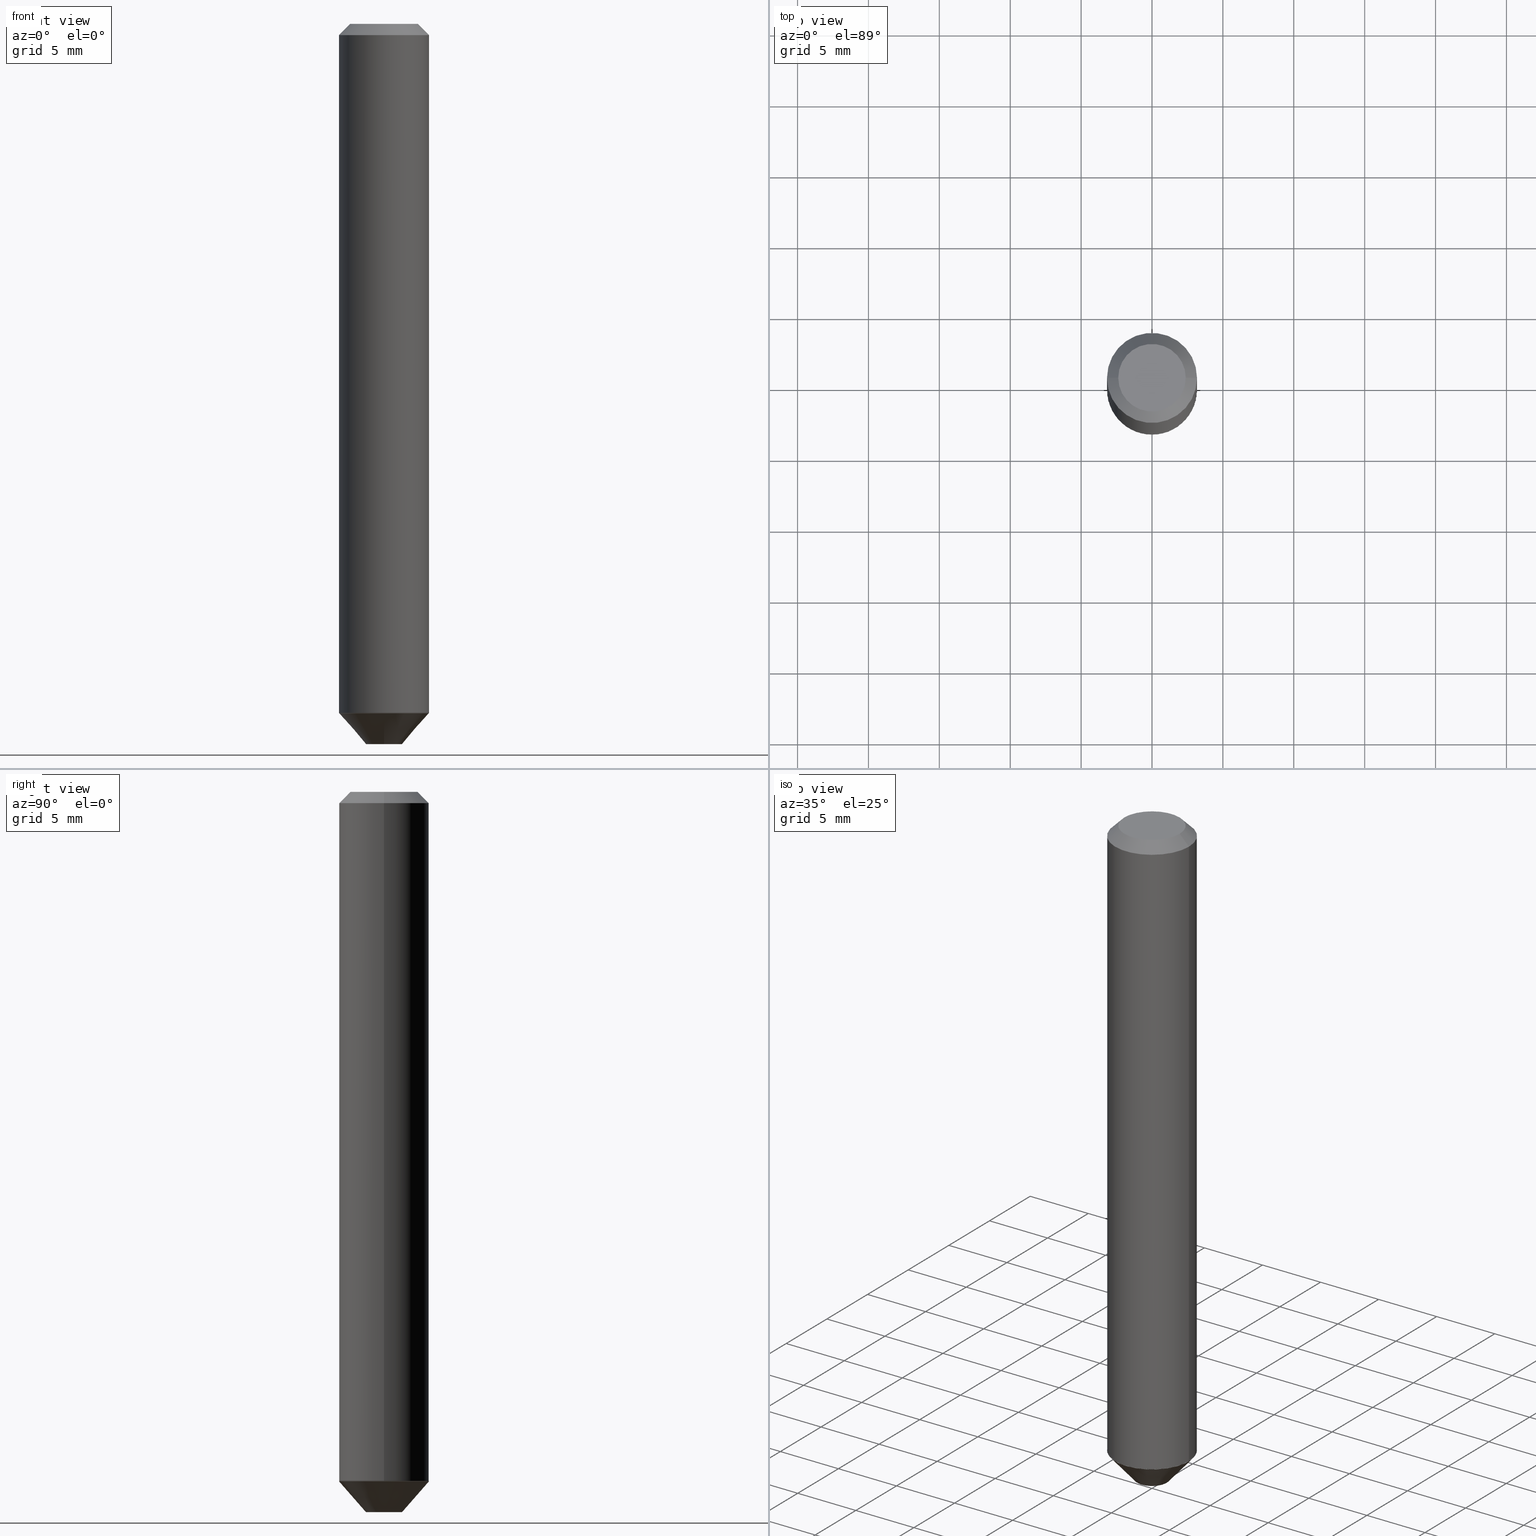
[diagram: canonical four-view strip — front | top / right | iso, engineering-drawing reading convention]
A machine part, canonical four-view strip (front | top / right | iso — engineering-drawing reading convention). The complete STEP part file that produces these views, byte-faithful:
ISO-10303-21;
HEADER;
FILE_DESCRIPTION (( 'STEP AP203' ),
    '1' );
FILE_NAME ('74131.STEP',
    '2025-06-20T12:14:31',
    ( '' ),
    ( '' ),
    'SwSTEP 2.0',
    'SolidWorks 2024',
    '' );
FILE_SCHEMA (( 'CONFIG_CONTROL_DESIGN' ));
ENDSEC;

DATA;
#1 = VECTOR ( 'NONE', #38, 39.37007874015748143 ) ;
#2 = FACE_OUTER_BOUND ( 'NONE', #269, .T. ) ;
#3 = CARTESIAN_POINT ( 'NONE',  ( -8.575622497213927331E-16, -0.1250000000000064115, -1.914303206326506412 ) ) ;
#4 = DATE_AND_TIME ( #331, #133 ) ;
#5 = PERSON_AND_ORGANIZATION ( #190, #335 ) ;
#6 = CONICAL_SURFACE ( 'NONE', #114, 0.1250000000000002498, 0.7853981633981995669 ) ;
#7 = CARTESIAN_POINT ( 'NONE',  ( 4.680146042248569603E-29, -6.682008181107177539E-15, -1.913803206326506912 ) ) ;
#8 = PERSON_AND_ORGANIZATION ( #190, #335 ) ;
#9 =( GEOMETRIC_REPRESENTATION_CONTEXT ( 3 ) GLOBAL_UNCERTAINTY_ASSIGNED_CONTEXT ( ( #303 ) ) GLOBAL_UNIT_ASSIGNED_CONTEXT ( ( #324, #101, #200 ) ) REPRESENTATION_CONTEXT ( 'NONE', 'WORKASPACE' ) );
#10 = ORIENTED_EDGE ( 'NONE', *, *, #160, .F. ) ;
#11 = EDGE_CURVE ( 'NONE', #375, #396, #174, .T. ) ;
#12 = CIRCLE ( 'NONE', #123, 0.1249999999999996253 ) ;
#13 = FACE_OUTER_BOUND ( 'NONE', #309, .T. ) ;
#14 = AXIS2_PLACEMENT_3D ( 'NONE', #85, #178, #397 ) ;
#15 = DATE_TIME_ROLE ( 'creation_date' ) ;
#16 = ORIENTED_EDGE ( 'NONE', *, *, #41, .T. ) ;
#17 = AXIS2_PLACEMENT_3D ( 'NONE', #168, #171, #226 ) ;
#18 = PRODUCT ( '74131', '74131', '', ( #297 ) ) ;
#19 = CARTESIAN_POINT ( 'NONE',  ( 8.693788533719868745E-16, 0.1244999999999933243, -1.913803206326507578 ) ) ;
#20 = CC_DESIGN_DATE_AND_TIME_ASSIGNMENT ( #189, #15, ( #320 ) ) ;
#21 = ORIENTED_EDGE ( 'NONE', *, *, #96, .F. ) ;
#22 = DIRECTION ( 'NONE',  ( -6.982962677686265922E-15, -1.000000000000000000, 4.370956789862834560E-15 ) ) ;
#23 = DIRECTION ( 'NONE',  ( 2.445468806185136597E-29, -3.491481338843145583E-15, -1.000000000000000000 ) ) ;
#24 = CONICAL_SURFACE ( 'NONE', #307, 0.1250000000000002498, 0.7853981633981995669 ) ;
#25 = CIRCLE ( 'NONE', #281, 0.1244999999999995832 ) ;
#26 = LINE ( 'NONE', #118, #170 ) ;
#27 = DIMENSIONAL_EXPONENTS ( 1.000000000000000000, 0.000000000000000000, 0.000000000000000000, 0.000000000000000000, 0.000000000000000000, 0.000000000000000000, 0.000000000000000000 ) ;
#28 = APPROVAL_STATUS ( 'not_yet_approved' ) ;
#29 = ORIENTED_EDGE ( 'NONE', *, *, #132, .F. ) ;
#30 = CARTESIAN_POINT ( 'NONE',  ( -9.358861080966640236E-47, 1.336197326842803670E-32, 3.827021247335477232E-18 ) ) ;
#31 = AXIS2_PLACEMENT_3D ( 'NONE', #261, #145, #76 ) ;
#32 = EDGE_LOOP ( 'NONE', ( #262, #222, #228, #276 ) ) ;
#33 = EDGE_CURVE ( 'NONE', #134, #149, #229, .T. ) ;
#34 = CARTESIAN_POINT ( 'NONE',  ( 4.680146042248569603E-29, -6.682008181107177539E-15, -1.913803206326506912 ) ) ;
#35 = VERTEX_POINT ( 'NONE', #3 ) ;
#36 = DESIGN_CONTEXT ( 'detailed design', #108, 'design' ) ;
#37 = CARTESIAN_POINT ( 'NONE',  ( 0.1250000000000000278, -9.819791265496326367E-16, -0.03125000000000022898 ) ) ;
#38 = DIRECTION ( 'NONE',  ( 0.7071067811870787034, -2.468850131087820502E-15, 0.7071067811860163310 ) ) ;
#39 = EDGE_LOOP ( 'NONE', ( #166, #197, #253, #10 ) ) ;
#40 = FACE_OUTER_BOUND ( 'NONE', #286, .T. ) ;
#41 = EDGE_CURVE ( 'NONE', #88, #300, #366, .T. ) ;
#42 = CARTESIAN_POINT ( 'NONE',  ( 4.681369141675924040E-29, -6.683753399041078797E-15, -1.914303206326506857 ) ) ;
#43 = PRODUCT_DEFINITION_SHAPE ( 'NONE', 'NONE',  #320 ) ;
#44 = EDGE_CURVE ( 'NONE', #35, #120, #12, .T. ) ;
#45 = CONICAL_SURFACE ( 'NONE', #382, 0.1250000000000000278, 0.7853981633974450594 ) ;
#46 = ADVANCED_FACE ( 'NONE', ( #173 ), #86, .T. ) ;
#47 = CIRCLE ( 'NONE', #196, 0.1250000000000000278 ) ;
#48 = LINE ( 'NONE', #176, #315 ) ;
#49 = DIRECTION ( 'NONE',  ( -2.445468806185136877E-29, 3.491481338843145188E-15, 1.000000000000000000 ) ) ;
#50 = DIRECTION ( 'NONE',  ( 0.7071067811865452413, -7.319954787623248157E-15, -0.7071067811865497932 ) ) ;
#51 = APPROVAL_STATUS ( 'not_yet_approved' ) ;
#52 = DIRECTION ( 'NONE',  ( 6.982962677686265133E-15, 1.000000000000000000, -4.388510833195603583E-15 ) ) ;
#53 = AXIS2_PLACEMENT_3D ( 'NONE', #30, #370, #405 ) ;
#54 = ORIENTED_EDGE ( 'NONE', *, *, #251, .T. ) ;
#55 = CARTESIAN_POINT ( 'NONE',  ( 4.680146042248569603E-29, -6.682008181107177539E-15, -1.913803206326506912 ) ) ;
#56 = PERSON_AND_ORGANIZATION ( #190, #335 ) ;
#57 = EDGE_CURVE ( 'NONE', #149, #134, #83, .T. ) ;
#58 = CALENDAR_DATE ( 2025, 20, 6 ) ;
#59 = CALENDAR_DATE ( 2025, 20, 6 ) ;
#60 = MANIFOLD_SOLID_BREP ( 'Body-Move/Copy2[1]', #323 ) ;
#61 = DIRECTION ( 'NONE',  ( 6.982962677686265922E-15, 1.000000000000000000, -4.370956789862834560E-15 ) ) ;
#62 = DIRECTION ( 'NONE',  ( 1.000000000000000000, -6.982962677686266711E-15, 0.000000000000000000 ) ) ;
#63 = EDGE_LOOP ( 'NONE', ( #146, #306, #177, #162 ) ) ;
#64 = CARTESIAN_POINT ( 'NONE',  ( 8.693788533719868745E-16, 0.1244999999999933243, -1.913803206326507578 ) ) ;
#65 = CARTESIAN_POINT ( 'NONE',  ( 4.678923307845477923E-29, -6.680262440437756036E-15, -1.913303206326507189 ) ) ;
#66 = AXIS2_PLACEMENT_3D ( 'NONE', #55, #91, #367 ) ;
#67 = AXIS2_PLACEMENT_3D ( 'NONE', #351, #349, #61 ) ;
#68 = ORIENTED_EDGE ( 'NONE', *, *, #33, .F. ) ;
#69 = CYLINDRICAL_SURFACE ( 'NONE', #215, 0.1250000000000001388 ) ;
#70 = DIRECTION ( 'NONE',  ( -2.445468806185136597E-29, 3.491481338843145583E-15, 1.000000000000000000 ) ) ;
#71 = ORIENTED_EDGE ( 'NONE', *, *, #259, .F. ) ;
#72 = EDGE_LOOP ( 'NONE', ( #68, #153 ) ) ;
#73 = LOCAL_TIME ( 8, 14, 31.00000000000000000, #345 ) ;
#74 = CARTESIAN_POINT ( 'NONE',  ( -8.728703347107337392E-16, -0.1250000000000063005, -1.914303206326506412 ) ) ;
#75 = COORDINATED_UNIVERSAL_TIME_OFFSET ( 5, 0, .BEHIND. ) ;
#76 = DIRECTION ( 'NONE',  ( 1.000000000000000000, 0.000000000000000000, 0.000000000000000000 ) ) ;
#77 = CALENDAR_DATE ( 2025, 20, 6 ) ;
#78 = APPROVAL ( #28, 'UNSPECIFIED' ) ;
#79 = LOCAL_TIME ( 8, 14, 31.00000000000000000, #231 ) ;
#80 = DIRECTION ( 'NONE',  ( 2.446198854709447971E-29, -3.490435867804550332E-15, -1.000000000000000000 ) ) ;
#81 = APPROVAL_DATE_TIME ( #233, #78 ) ;
#82 = VECTOR ( 'NONE', #194, 39.37007874015748143 ) ;
#83 = CIRCLE ( 'NONE', #235, 0.1244999999999999996 ) ;
#84 = DIRECTION ( 'NONE',  ( 2.446198854709447971E-29, -3.490435867804550332E-15, -1.000000000000000000 ) ) ;
#85 = CARTESIAN_POINT ( 'NONE',  ( 4.678923307845477923E-29, -6.680262440437756036E-15, -1.913303206326507189 ) ) ;
#86 = PLANE ( 'NONE',  #416 ) ;
#87 = APPROVAL_PERSON_ORGANIZATION ( #56, #361, #312 ) ;
#88 = VERTEX_POINT ( 'NONE', #117 ) ;
#89 = DIRECTION ( 'NONE',  ( -1.000000000000000000, 6.982962677686265922E-15, 0.000000000000000000 ) ) ;
#90 = CARTESIAN_POINT ( 'NONE',  ( -0.09374999999999998612, 7.092071469525108711E-16, 3.827021247330707859E-18 ) ) ;
#91 = DIRECTION ( 'NONE',  ( -2.445468806185136597E-29, 3.491481338843145583E-15, 1.000000000000000000 ) ) ;
#92 = APPROVAL_PERSON_ORGANIZATION ( #5, #240, #227 ) ;
#93 = AXIS2_PLACEMENT_3D ( 'NONE', #252, #167, #287 ) ;
#94 = EDGE_LOOP ( 'NONE', ( #241, #199, #373, #29 ) ) ;
#95 = DIRECTION ( 'NONE',  ( 1.000000000000000000, -6.982962677686264344E-15, 0.000000000000000000 ) ) ;
#96 = EDGE_CURVE ( 'NONE', #329, #224, #48, .T. ) ;
#97 = LINE ( 'NONE', #64, #82 ) ;
#98 = CARTESIAN_POINT ( 'NONE',  ( 0.1244999999999995832, -7.551387034479115504E-15, -1.913803206326506912 ) ) ;
#99 = PLANE ( 'NONE',  #93 ) ;
#100 = CONICAL_SURFACE ( 'NONE', #406, 0.1250000000000000278, 0.7853981633974450594 ) ;
#101 =( NAMED_UNIT ( * ) PLANE_ANGLE_UNIT ( ) SI_UNIT ( $, .RADIAN. ) );
#102 = DIRECTION ( 'NONE',  ( -2.445468806185136597E-29, 3.491481338843145583E-15, 1.000000000000000000 ) ) ;
#103 = CARTESIAN_POINT ( 'NONE',  ( -6.110092342974980473E-16, -0.05000000000000672656, -1.999999999999999778 ) ) ;
#104 = ORIENTED_EDGE ( 'NONE', *, *, #57, .T. ) ;
#105 = COORDINATED_UNIVERSAL_TIME_OFFSET ( 5, 0, .BEHIND. ) ;
#106 = ADVANCED_FACE ( 'NONE', ( #298 ), #137, .T. ) ;
#107 = CALENDAR_DATE ( 2025, 20, 6 ) ;
#108 = APPLICATION_CONTEXT ( 'configuration controlled 3d designs of mechanical parts and assemblies' ) ;
#109 = PERSON_AND_ORGANIZATION ( #190, #335 ) ;
#110 = ORIENTED_EDGE ( 'NONE', *, *, #172, .T. ) ;
#111 = VECTOR ( 'NONE', #339, 39.37007874015748143 ) ;
#112 = EDGE_CURVE ( 'NONE', #396, #375, #295, .T. ) ;
#113 = CARTESIAN_POINT ( 'NONE',  ( 7.642090019328607041E-31, -1.091087918388490883E-16, -0.03125000000000022898 ) ) ;
#114 = AXIS2_PLACEMENT_3D ( 'NONE', #65, #192, #95 ) ;
#115 = ORIENTED_EDGE ( 'NONE', *, *, #314, .T. ) ;
#116 = CARTESIAN_POINT ( 'NONE',  ( 0.000000000000000000, 0.000000000000000000, 0.000000000000000000 ) ) ;
#117 = CARTESIAN_POINT ( 'NONE',  ( 0.1250000000000002498, -7.553132775148540952E-15, -1.913303206326507189 ) ) ;
#118 = CARTESIAN_POINT ( 'NONE',  ( -0.1250000000000000278, 7.637615428719344354E-16, -0.03125000000000022898 ) ) ;
#119 = APPLICATION_PROTOCOL_DEFINITION ( 'international standard', 'config_control_design', 1994, #108 ) ;
#120 = VERTEX_POINT ( 'NONE', #236 ) ;
#121 = EDGE_CURVE ( 'NONE', #149, #35, #187, .T. ) ;
#122 = DIRECTION ( 'NONE',  ( -2.446198854709447971E-29, 3.490435867804550332E-15, 1.000000000000000000 ) ) ;
#123 = AXIS2_PLACEMENT_3D ( 'NONE', #42, #343, #365 ) ;
#124 = ADVANCED_FACE ( 'NONE', ( #369 ), #45, .T. ) ;
#125 = DIRECTION ( 'NONE',  ( 1.000000000000000000, -6.982962677686264344E-15, 0.000000000000000000 ) ) ;
#126 = CARTESIAN_POINT ( 'NONE',  ( 8.881784197001692113E-16, 0.1249999999999929501, -1.914303206326507523 ) ) ;
#127 = ORIENTED_EDGE ( 'NONE', *, *, #371, .F. ) ;
#128 = APPLICATION_PROTOCOL_DEFINITION ( 'international standard', 'config_control_design', 1994, #207 ) ;
#129 = ORIENTED_EDGE ( 'NONE', *, *, #391, .F. ) ;
#130 = EDGE_LOOP ( 'NONE', ( #21, #414, #16, #407 ) ) ;
#131 = DIRECTION ( 'NONE',  ( 1.000000000000000000, -6.982962677686266711E-15, 4.875989565238656407E-29 ) ) ;
#132 = EDGE_CURVE ( 'NONE', #179, #224, #26, .T. ) ;
#133 = LOCAL_TIME ( 8, 14, 31.00000000000000000, #105 ) ;
#134 = VERTEX_POINT ( 'NONE', #19 ) ;
#135 = AXIS2_PLACEMENT_3D ( 'NONE', #353, #143, #232 ) ;
#136 = CONICAL_SURFACE ( 'NONE', #151, 0.1244999999999999996, 0.7853981633971751641 ) ;
#137 = CONICAL_SURFACE ( 'NONE', #157, 0.1244999999999999996, 0.7853981633971751641 ) ;
#138 = ORIENTED_EDGE ( 'NONE', *, *, #121, .F. ) ;
#139 = DIRECTION ( 'NONE',  ( -0.7071067811870787034, 7.493145998872274248E-15, 0.7071067811860163310 ) ) ;
#140 = LINE ( 'NONE', #410, #1 ) ;
#141 = CARTESIAN_POINT ( 'NONE',  ( 4.680146042248569603E-29, -6.682008181107177539E-15, -1.913803206326506912 ) ) ;
#142 = EDGE_CURVE ( 'NONE', #193, #300, #268, .T. ) ;
#143 = DIRECTION ( 'NONE',  ( 2.446198854709447971E-29, -3.490435867804550332E-15, -1.000000000000000000 ) ) ;
#144 = SHAPE_DEFINITION_REPRESENTATION ( #43, #275 ) ;
#145 = DIRECTION ( 'NONE',  ( 0.000000000000000000, 0.000000000000000000, 1.000000000000000000 ) ) ;
#146 = ORIENTED_EDGE ( 'NONE', *, *, #11, .F. ) ;
#147 = CC_DESIGN_PERSON_AND_ORGANIZATION_ASSIGNMENT ( #8, #292, ( #313 ) ) ;
#148 = PERSON_AND_ORGANIZATION_ROLE ( 'creator' ) ;
#149 = VERTEX_POINT ( 'NONE', #402 ) ;
#150 = CYLINDRICAL_SURFACE ( 'NONE', #219, 0.1250000000000001388 ) ;
#151 = AXIS2_PLACEMENT_3D ( 'NONE', #34, #225, #279 ) ;
#152 = ORIENTED_EDGE ( 'NONE', *, *, #381, .F. ) ;
#153 = ORIENTED_EDGE ( 'NONE', *, *, #57, .F. ) ;
#154 = FACE_OUTER_BOUND ( 'NONE', #32, .T. ) ;
#155 = LOCAL_TIME ( 8, 14, 31.00000000000000000, #156 ) ;
#156 = COORDINATED_UNIVERSAL_TIME_OFFSET ( 5, 0, .BEHIND. ) ;
#157 = AXIS2_PLACEMENT_3D ( 'NONE', #7, #209, #340 ) ;
#158 = FACE_OUTER_BOUND ( 'NONE', #63, .T. ) ;
#159 = VECTOR ( 'NONE', #237, 39.37007874015748143 ) ;
#160 = EDGE_CURVE ( 'NONE', #329, #88, #213, .T. ) ;
#161 = CARTESIAN_POINT ( 'NONE',  ( 4.678923307845477923E-29, -6.680262440437756036E-15, -1.913303206326507189 ) ) ;
#162 = ORIENTED_EDGE ( 'NONE', *, *, #354, .F. ) ;
#163 = DIRECTION ( 'NONE',  ( 4.679497495853047431E-15, 0.6585807243314101278, 0.7525100860049086515 ) ) ;
#164 = CIRCLE ( 'NONE', #67, 0.1249999999999996253 ) ;
#165 = LINE ( 'NONE', #74, #183 ) ;
#166 = ORIENTED_EDGE ( 'NONE', *, *, #314, .F. ) ;
#167 = DIRECTION ( 'NONE',  ( 2.438088387897960049E-29, -3.491481338843145188E-15, -1.000000000000000000 ) ) ;
#168 = CARTESIAN_POINT ( 'NONE',  ( -4.679430540483320118E-47, 6.680986634214018350E-33, 1.913510623667738616E-18 ) ) ;
#169 = ORIENTED_EDGE ( 'NONE', *, *, #354, .T. ) ;
#170 = VECTOR ( 'NONE', #243, 39.37007874015748143 ) ;
#171 = DIRECTION ( 'NONE',  ( 2.438088387897960049E-29, -3.491481338843145188E-15, -1.000000000000000000 ) ) ;
#172 = EDGE_CURVE ( 'NONE', #88, #329, #264, .T. ) ;
#173 = FACE_OUTER_BOUND ( 'NONE', #72, .T. ) ;
#174 = CIRCLE ( 'NONE', #332, 0.04999999999999973910 ) ;
#175 = ADVANCED_FACE ( 'NONE', ( #13 ), #150, .T. ) ;
#176 = CARTESIAN_POINT ( 'NONE',  ( -0.1250000000000001388, 8.881784197001262184E-16, -6.148668862818638533E-30 ) ) ;
#177 = ORIENTED_EDGE ( 'NONE', *, *, #259, .T. ) ;
#178 = DIRECTION ( 'NONE',  ( -2.445468806185136597E-29, 3.491481338843145583E-15, 1.000000000000000000 ) ) ;
#179 = VERTEX_POINT ( 'NONE', #90 ) ;
#180 = AXIS2_PLACEMENT_3D ( 'NONE', #310, #122, #245 ) ;
#181 = ADVANCED_FACE ( 'NONE', ( #154 ), #100, .T. ) ;
#182 = DIRECTION ( 'NONE',  ( 1.000000000000000000, -6.982962677686264344E-15, 0.000000000000000000 ) ) ;
#183 = VECTOR ( 'NONE', #374, 39.37007874015748854 ) ;
#184 = DIRECTION ( 'NONE',  ( 2.446198854709447971E-29, -3.490435867804550332E-15, -1.000000000000000000 ) ) ;
#185 = EDGE_CURVE ( 'NONE', #378, #247, #203, .T. ) ;
#186 = DIRECTION ( 'NONE',  ( -2.446198854709447971E-29, 3.490435867804550332E-15, 1.000000000000000000 ) ) ;
#187 = LINE ( 'NONE', #304, #111 ) ;
#188 = CARTESIAN_POINT ( 'NONE',  ( 0.1250000000000000278, -9.666710415602907432E-16, -0.03125000000000022898 ) ) ;
#189 = DATE_AND_TIME ( #59, #73 ) ;
#190 = PERSON ( 'UNSPECIFIED', 'UNSPECIFIED', 'UNSPECIFIED', ('UNSPECIFIED'), ('UNSPECIFIED'), ('UNSPECIFIED') ) ;
#191 = FACE_OUTER_BOUND ( 'NONE', #393, .T. ) ;
#192 = DIRECTION ( 'NONE',  ( -2.445468806185136597E-29, 3.491481338843145583E-15, 1.000000000000000000 ) ) ;
#193 = VERTEX_POINT ( 'NONE', #341 ) ;
#194 = DIRECTION ( 'NONE',  ( 4.937700262163199090E-15, 0.7071067811863519514, -0.7071067811867430830 ) ) ;
#195 = CARTESIAN_POINT ( 'NONE',  ( 4.890937612370273194E-29, -6.982962677686291165E-15, -2.000000000000000000 ) ) ;
#196 = AXIS2_PLACEMENT_3D ( 'NONE', #198, #70, #202 ) ;
#197 = ORIENTED_EDGE ( 'NONE', *, *, #371, .T. ) ;
#198 = CARTESIAN_POINT ( 'NONE',  ( 7.642090019328607041E-31, -1.091087918388490883E-16, -0.03125000000000022898 ) ) ;
#199 = ORIENTED_EDGE ( 'NONE', *, *, #142, .T. ) ;
#200 =( NAMED_UNIT ( * ) SI_UNIT ( $, .STERADIAN. ) SOLID_ANGLE_UNIT ( ) );
#201 = ORIENTED_EDGE ( 'NONE', *, *, #112, .F. ) ;
#202 = DIRECTION ( 'NONE',  ( 1.000000000000000000, -6.982962677686265922E-15, 0.000000000000000000 ) ) ;
#203 = CIRCLE ( 'NONE', #66, 0.1244999999999995832 ) ;
#204 = CLOSED_SHELL ( 'NONE', ( #124, #175, #221, #377, #318, #311, #181, #413 ) ) ;
#205 = CARTESIAN_POINT ( 'NONE',  ( 4.680146042248569603E-29, -6.682008181107177539E-15, -1.913803206326506912 ) ) ;
#206 = VECTOR ( 'NONE', #139, 39.37007874015748143 ) ;
#207 = APPLICATION_CONTEXT ( 'configuration controlled 3d designs of mechanical parts and assemblies' ) ;
#208 = DIRECTION ( 'NONE',  ( 2.445468806185136597E-29, -3.491481338843145583E-15, -1.000000000000000000 ) ) ;
#209 = DIRECTION ( 'NONE',  ( 2.446198854709447971E-29, -3.490435867804550332E-15, -1.000000000000000000 ) ) ;
#210 = CARTESIAN_POINT ( 'NONE',  ( 7.642090019328607041E-31, -1.091087918388490883E-16, -0.03125000000000022898 ) ) ;
#211 = CARTESIAN_POINT ( 'NONE',  ( 0.1250000000000001388, -8.728703347107843249E-16, 6.095220969744926748E-30 ) ) ;
#212 = ADVANCED_FACE ( 'NONE', ( #158 ), #296, .T. ) ;
#213 = CIRCLE ( 'NONE', #395, 0.1250000000000002498 ) ;
#214 = CARTESIAN_POINT ( 'NONE',  ( 4.678923307845477923E-29, -6.680262440437756036E-15, -1.913303206326507189 ) ) ;
#215 = AXIS2_PLACEMENT_3D ( 'NONE', #257, #102, #385 ) ;
#216 = FACE_OUTER_BOUND ( 'NONE', #400, .T. ) ;
#217 = FACE_OUTER_BOUND ( 'NONE', #325, .T. ) ;
#218 = PERSON_AND_ORGANIZATION_ROLE ( 'creator' ) ;
#219 = AXIS2_PLACEMENT_3D ( 'NONE', #116, #246, #238 ) ;
#220 = DIRECTION ( 'NONE',  ( -2.446198854709447411E-29, 3.490435867804550332E-15, 1.000000000000000000 ) ) ;
#221 = ADVANCED_FACE ( 'NONE', ( #217 ), #24, .T. ) ;
#222 = ORIENTED_EDGE ( 'NONE', *, *, #399, .F. ) ;
#223 = DIRECTION ( 'NONE',  ( -2.445468806185136597E-29, 3.491481338843145583E-15, 1.000000000000000000 ) ) ;
#224 = VERTEX_POINT ( 'NONE', #344 ) ;
#225 = DIRECTION ( 'NONE',  ( 2.446198854709447971E-29, -3.490435867804550332E-15, -1.000000000000000000 ) ) ;
#226 = DIRECTION ( 'NONE',  ( -1.000000000000000000, 6.982962677686265922E-15, -4.876176775795935793E-29 ) ) ;
#227 = APPROVAL_ROLE ( '' ) ;
#228 = ORIENTED_EDGE ( 'NONE', *, *, #132, .T. ) ;
#229 = CIRCLE ( 'NONE', #255, 0.1244999999999999996 ) ;
#230 = CIRCLE ( 'NONE', #316, 0.1250000000000000278 ) ;
#231 = COORDINATED_UNIVERSAL_TIME_OFFSET ( 5, 0, .BEHIND. ) ;
#232 = DIRECTION ( 'NONE',  ( 6.982962677686265922E-15, 1.000000000000000000, -5.463695987328554836E-15 ) ) ;
#233 = DATE_AND_TIME ( #107, #79 ) ;
#234 = ORIENTED_EDGE ( 'NONE', *, *, #33, .T. ) ;
#235 = AXIS2_PLACEMENT_3D ( 'NONE', #141, #184, #336 ) ;
#236 = CARTESIAN_POINT ( 'NONE',  ( 8.728703347108266276E-16, 0.1249999999999928252, -1.914303206326507523 ) ) ;
#237 = DIRECTION ( 'NONE',  ( -2.445468806185136877E-29, 3.491481338843145188E-15, 1.000000000000000000 ) ) ;
#238 = DIRECTION ( 'NONE',  ( 1.000000000000000000, -6.982962677686266711E-15, 4.876176775795935793E-29 ) ) ;
#239 = PERSON_AND_ORGANIZATION ( #190, #335 ) ;
#240 = APPROVAL ( #387, 'UNSPECIFIED' ) ;
#241 = ORIENTED_EDGE ( 'NONE', *, *, #251, .F. ) ;
#242 = CC_DESIGN_PERSON_AND_ORGANIZATION_ASSIGNMENT ( #239, #218, ( #320 ) ) ;
#243 = DIRECTION ( 'NONE',  ( -0.7071067811865452413, 2.468850131082233000E-15, -0.7071067811865497932 ) ) ;
#244 = ORIENTED_EDGE ( 'NONE', *, *, #44, .T. ) ;
#245 = DIRECTION ( 'NONE',  ( -6.982962677686265922E-15, -1.000000000000000000, 4.370956789862834560E-15 ) ) ;
#246 = DIRECTION ( 'NONE',  ( -2.445468806185136597E-29, 3.491481338843145583E-15, 1.000000000000000000 ) ) ;
#247 = VERTEX_POINT ( 'NONE', #270 ) ;
#248 = AXIS2_PLACEMENT_3D ( 'NONE', #272, #186, #22 ) ;
#249 = ADVANCED_FACE ( 'NONE', ( #216 ), #346, .T. ) ;
#250 = EDGE_LOOP ( 'NONE', ( #271, #54 ) ) ;
#251 = EDGE_CURVE ( 'NONE', #193, #179, #290, .T. ) ;
#252 = CARTESIAN_POINT ( 'NONE',  ( 4.680146042248569603E-29, -6.682008181107177539E-15, -1.913803206326506912 ) ) ;
#253 = ORIENTED_EDGE ( 'NONE', *, *, #391, .T. ) ;
#254 = PLANE ( 'NONE',  #17 ) ;
#255 = AXIS2_PLACEMENT_3D ( 'NONE', #205, #84, #52 ) ;
#256 = CARTESIAN_POINT ( 'NONE',  ( 6.217248937901331799E-16, 0.04999999999999275857, -2.000000000000000444 ) ) ;
#257 = CARTESIAN_POINT ( 'NONE',  ( 0.000000000000000000, 0.000000000000000000, 0.000000000000000000 ) ) ;
#258 = CARTESIAN_POINT ( 'NONE',  ( 4.680146042248569603E-29, -6.682008181107177539E-15, -1.913803206326506912 ) ) ;
#259 = EDGE_CURVE ( 'NONE', #120, #35, #164, .T. ) ;
#260 = APPROVAL_ROLE ( '' ) ;
#261 = CARTESIAN_POINT ( 'NONE',  ( 0.000000000000000000, 0.000000000000000000, 0.000000000000000000 ) ) ;
#262 = ORIENTED_EDGE ( 'NONE', *, *, #142, .F. ) ;
#263 = APPROVAL_PERSON_ORGANIZATION ( #317, #78, #260 ) ;
#264 = CIRCLE ( 'NONE', #14, 0.1250000000000002498 ) ;
#265 = ORIENTED_EDGE ( 'NONE', *, *, #41, .F. ) ;
#266 = AXIS2_PLACEMENT_3D ( 'NONE', #380, #408, #131 ) ;
#267 = CC_DESIGN_PERSON_AND_ORGANIZATION_ASSIGNMENT ( #294, #390, ( #379 ) ) ;
#268 = LINE ( 'NONE', #188, #388 ) ;
#269 = EDGE_LOOP ( 'NONE', ( #288, #127 ) ) ;
#270 = CARTESIAN_POINT ( 'NONE',  ( -0.1244999999999995832, -5.794733247911742793E-15, -1.913803206326506912 ) ) ;
#271 = ORIENTED_EDGE ( 'NONE', *, *, #399, .T. ) ;
#272 = CARTESIAN_POINT ( 'NONE',  ( 4.681369141675924040E-29, -6.683753399041078797E-15, -1.914303206326506857 ) ) ;
#273 = DIRECTION ( 'NONE',  ( -1.000000000000000000, 6.982962677686265922E-15, 0.000000000000000000 ) ) ;
#274 = DIRECTION ( 'NONE',  ( -2.445468806185136597E-29, 3.491481338843145583E-15, 1.000000000000000000 ) ) ;
#275 = ADVANCED_BREP_SHAPE_REPRESENTATION ( '74131', ( #60, #342, #31 ), #9 ) ;
#276 = ORIENTED_EDGE ( 'NONE', *, *, #348, .T. ) ;
#277 = EDGE_CURVE ( 'NONE', #375, #120, #376, .T. ) ;
#278 = LOCAL_TIME ( 8, 14, 31.00000000000000000, #75 ) ;
#279 = DIRECTION ( 'NONE',  ( 6.982962677686265133E-15, 1.000000000000000000, -4.388510833195603583E-15 ) ) ;
#280 = ADVANCED_FACE ( 'NONE', ( #191 ), #136, .T. ) ;
#281 = AXIS2_PLACEMENT_3D ( 'NONE', #350, #223, #62 ) ;
#282 = CC_DESIGN_DATE_AND_TIME_ASSIGNMENT ( #334, #394, ( #313 ) ) ;
#283 = PLANE ( 'NONE',  #347 ) ;
#284 = ORIENTED_EDGE ( 'NONE', *, *, #121, .T. ) ;
#285 = DIRECTION ( 'NONE',  ( -2.445468806185136597E-29, 3.491481338843145583E-15, 1.000000000000000000 ) ) ;
#286 = EDGE_LOOP ( 'NONE', ( #321, #357 ) ) ;
#287 = DIRECTION ( 'NONE',  ( -1.000000000000000000, 6.982962677686265922E-15, -4.876176775795935793E-29 ) ) ;
#288 = ORIENTED_EDGE ( 'NONE', *, *, #185, .F. ) ;
#289 = LINE ( 'NONE', #415, #206 ) ;
#290 = CIRCLE ( 'NONE', #53, 0.09374999999999998612 ) ;
#291 = ORIENTED_EDGE ( 'NONE', *, *, #44, .F. ) ;
#292 = PERSON_AND_ORGANIZATION_ROLE ( 'classification_officer' ) ;
#293 = EDGE_CURVE ( 'NONE', #134, #120, #97, .T. ) ;
#294 = PERSON_AND_ORGANIZATION ( #190, #335 ) ;
#295 = CIRCLE ( 'NONE', #135, 0.04999999999999973910 ) ;
#296 = CONICAL_SURFACE ( 'NONE', #248, 0.1249999999999996253, 0.7189311452350203302 ) ;
#297 = MECHANICAL_CONTEXT ( 'NONE', #207, 'mechanical' ) ;
#298 = FACE_OUTER_BOUND ( 'NONE', #319, .T. ) ;
#299 = SECURITY_CLASSIFICATION_LEVEL ( 'unclassified' ) ;
#300 = VERTEX_POINT ( 'NONE', #37 ) ;
#301 = CC_DESIGN_PERSON_AND_ORGANIZATION_ASSIGNMENT ( #337, #148, ( #379 ) ) ;
#302 = CC_DESIGN_APPROVAL ( #240, ( #313 ) ) ;
#303 = UNCERTAINTY_MEASURE_WITH_UNIT (LENGTH_MEASURE( 1.000000000000000082E-05 ), #324, 'distance_accuracy_value', 'NONE');
#304 = CARTESIAN_POINT ( 'NONE',  ( -8.541320007225087021E-16, -0.1245000000000066748, -1.913803206326506468 ) ) ;
#305 = APPROVAL_DATE_TIME ( #403, #361 ) ;
#306 = ORIENTED_EDGE ( 'NONE', *, *, #277, .T. ) ;
#307 = AXIS2_PLACEMENT_3D ( 'NONE', #214, #401, #182 ) ;
#308 = CIRCLE ( 'NONE', #266, 0.09374999999999998612 ) ;
#309 = EDGE_LOOP ( 'NONE', ( #110, #384, #152, #265 ) ) ;
#310 = CARTESIAN_POINT ( 'NONE',  ( 4.681369141675924040E-29, -6.683753399041078797E-15, -1.914303206326506857 ) ) ;
#311 = ADVANCED_FACE ( 'NONE', ( #409 ), #69, .T. ) ;
#312 = APPROVAL_ROLE ( '' ) ;
#313 = SECURITY_CLASSIFICATION ( '', '', #299 ) ;
#314 = EDGE_CURVE ( 'NONE', #247, #329, #289, .T. ) ;
#315 = VECTOR ( 'NONE', #49, 39.37007874015748143 ) ;
#316 = AXIS2_PLACEMENT_3D ( 'NONE', #326, #285, #352 ) ;
#317 = PERSON_AND_ORGANIZATION ( #190, #335 ) ;
#318 = ADVANCED_FACE ( 'NONE', ( #383 ), #6, .T. ) ;
#319 = EDGE_LOOP ( 'NONE', ( #234, #284, #71, #360 ) ) ;
#320 = PRODUCT_DEFINITION ( 'UNKNOWN', '', #379, #36 ) ;
#321 = ORIENTED_EDGE ( 'NONE', *, *, #112, .T. ) ;
#322 = CC_DESIGN_APPROVAL ( #78, ( #379 ) ) ;
#323 = CLOSED_SHELL ( 'NONE', ( #212, #106, #280, #46, #359, #249 ) ) ;
#324 =( CONVERSION_BASED_UNIT ( 'INCH', #412 ) LENGTH_UNIT ( ) NAMED_UNIT ( #27 ) );
#325 = EDGE_LOOP ( 'NONE', ( #355, #115, #368, #129 ) ) ;
#326 = CARTESIAN_POINT ( 'NONE',  ( 7.642090019328607041E-31, -1.091087918388490883E-16, -0.03125000000000022898 ) ) ;
#327 = PRODUCT_RELATED_PRODUCT_CATEGORY ( 'detail', '', ( #18 ) ) ;
#328 =( LENGTH_UNIT ( ) NAMED_UNIT ( * ) SI_UNIT ( $, .METRE. ) );
#329 = VERTEX_POINT ( 'NONE', #333 ) ;
#330 = CARTESIAN_POINT ( 'NONE',  ( 4.891000540212295148E-29, -6.982872561434885271E-15, -2.000000000000000000 ) ) ;
#331 = CALENDAR_DATE ( 2025, 20, 6 ) ;
#332 = AXIS2_PLACEMENT_3D ( 'NONE', #330, #80, #364 ) ;
#333 = CARTESIAN_POINT ( 'NONE',  ( -0.1250000000000002498, -5.792084020737628437E-15, -1.913303206326507189 ) ) ;
#334 = DATE_AND_TIME ( #77, #278 ) ;
#335 = ORGANIZATION ( 'UNSPECIFIED', 'UNSPECIFIED', '' ) ;
#336 = DIRECTION ( 'NONE',  ( 6.982962677686265133E-15, 1.000000000000000000, -4.388510833195603583E-15 ) ) ;
#337 = PERSON_AND_ORGANIZATION ( #190, #335 ) ;
#338 = DIRECTION ( 'NONE',  ( -2.446198854709447411E-29, 3.490435867804550332E-15, 1.000000000000000000 ) ) ;
#339 = DIRECTION ( 'NONE',  ( -4.851104656539638989E-15, -0.7071067811863568364, -0.7071067811867381980 ) ) ;
#340 = DIRECTION ( 'NONE',  ( 6.982962677686265133E-15, 1.000000000000000000, -4.388510833195603583E-15 ) ) ;
#341 = CARTESIAN_POINT ( 'NONE',  ( 0.09374999999999998612, -8.049213644256858150E-16, 3.827021247340580176E-18 ) ) ;
#342 = MANIFOLD_SOLID_BREP ( 'Body-Move/Copy2[2]', #204 ) ;
#343 = DIRECTION ( 'NONE',  ( 2.446198854709447971E-29, -3.490435867804550332E-15, -1.000000000000000000 ) ) ;
#344 = CARTESIAN_POINT ( 'NONE',  ( -0.1250000000000000278, -2.506507196438174969E-15, -0.03125000000000022898 ) ) ;
#345 = COORDINATED_UNIVERSAL_TIME_OFFSET ( 5, 0, .BEHIND. ) ;
#346 = CONICAL_SURFACE ( 'NONE', #180, 0.1249999999999996253, 0.7189311452350203302 ) ;
#347 = AXIS2_PLACEMENT_3D ( 'NONE', #195, #220, #356 ) ;
#348 = EDGE_CURVE ( 'NONE', #224, #300, #47, .T. ) ;
#349 = DIRECTION ( 'NONE',  ( 2.446198854709447971E-29, -3.490435867804550332E-15, -1.000000000000000000 ) ) ;
#350 = CARTESIAN_POINT ( 'NONE',  ( 4.680146042248569603E-29, -6.682008181107177539E-15, -1.913803206326506912 ) ) ;
#351 = CARTESIAN_POINT ( 'NONE',  ( 4.681369141675924040E-29, -6.683753399041078797E-15, -1.914303206326506857 ) ) ;
#352 = DIRECTION ( 'NONE',  ( 1.000000000000000000, -6.982962677686265922E-15, 0.000000000000000000 ) ) ;
#353 = CARTESIAN_POINT ( 'NONE',  ( 4.891000540212295148E-29, -6.982872561434885271E-15, -2.000000000000000000 ) ) ;
#354 = EDGE_CURVE ( 'NONE', #396, #35, #165, .T. ) ;
#355 = ORIENTED_EDGE ( 'NONE', *, *, #185, .T. ) ;
#356 = DIRECTION ( 'NONE',  ( -6.982962677686265922E-15, -1.000000000000000000, 3.490435867804550332E-15 ) ) ;
#357 = ORIENTED_EDGE ( 'NONE', *, *, #11, .T. ) ;
#358 = FACE_OUTER_BOUND ( 'NONE', #250, .T. ) ;
#359 = ADVANCED_FACE ( 'NONE', ( #40 ), #283, .F. ) ;
#360 = ORIENTED_EDGE ( 'NONE', *, *, #293, .F. ) ;
#361 = APPROVAL ( #51, 'UNSPECIFIED' ) ;
#362 = APPROVAL_DATE_TIME ( #4, #240 ) ;
#363 = CC_DESIGN_SECURITY_CLASSIFICATION ( #313, ( #379 ) ) ;
#364 = DIRECTION ( 'NONE',  ( 6.982962677686265922E-15, 1.000000000000000000, -5.463695987328554836E-15 ) ) ;
#365 = DIRECTION ( 'NONE',  ( 6.982962677686265922E-15, 1.000000000000000000, -4.370956789862834560E-15 ) ) ;
#366 = LINE ( 'NONE', #211, #159 ) ;
#367 = DIRECTION ( 'NONE',  ( 1.000000000000000000, -6.982962677686266711E-15, 0.000000000000000000 ) ) ;
#368 = ORIENTED_EDGE ( 'NONE', *, *, #172, .F. ) ;
#369 = FACE_OUTER_BOUND ( 'NONE', #94, .T. ) ;
#370 = DIRECTION ( 'NONE',  ( -2.445468806185136597E-29, 3.491481338843145583E-15, 1.000000000000000000 ) ) ;
#371 = EDGE_CURVE ( 'NONE', #247, #378, #25, .T. ) ;
#372 = PERSON_AND_ORGANIZATION_ROLE ( 'design_owner' ) ;
#373 = ORIENTED_EDGE ( 'NONE', *, *, #381, .T. ) ;
#374 = DIRECTION ( 'NONE',  ( -4.598844618249824080E-15, -0.6585807243314047987, 0.7525100860049133145 ) ) ;
#375 = VERTEX_POINT ( 'NONE', #256 ) ;
#376 = LINE ( 'NONE', #126, #389 ) ;
#377 = ADVANCED_FACE ( 'NONE', ( #2 ), #99, .T. ) ;
#378 = VERTEX_POINT ( 'NONE', #98 ) ;
#379 = PRODUCT_DEFINITION_FORMATION_WITH_SPECIFIED_SOURCE ( 'ANY', '', #18, .NOT_KNOWN. ) ;
#380 = CARTESIAN_POINT ( 'NONE',  ( -9.358861080966640236E-47, 1.336197326842803670E-32, 3.827021247335477232E-18 ) ) ;
#381 = EDGE_CURVE ( 'NONE', #300, #224, #230, .T. ) ;
#382 = AXIS2_PLACEMENT_3D ( 'NONE', #113, #208, #89 ) ;
#383 = FACE_OUTER_BOUND ( 'NONE', #39, .T. ) ;
#384 = ORIENTED_EDGE ( 'NONE', *, *, #96, .T. ) ;
#385 = DIRECTION ( 'NONE',  ( 1.000000000000000000, -6.982962677686266711E-15, 4.876176775795935793E-29 ) ) ;
#386 = ORIENTED_EDGE ( 'NONE', *, *, #293, .T. ) ;
#387 = APPROVAL_STATUS ( 'not_yet_approved' ) ;
#388 = VECTOR ( 'NONE', #50, 39.37007874015748143 ) ;
#389 = VECTOR ( 'NONE', #163, 39.37007874015748854 ) ;
#390 = PERSON_AND_ORGANIZATION_ROLE ( 'design_supplier' ) ;
#391 = EDGE_CURVE ( 'NONE', #378, #88, #140, .T. ) ;
#392 = CC_DESIGN_APPROVAL ( #361, ( #320 ) ) ;
#393 = EDGE_LOOP ( 'NONE', ( #138, #104, #386, #291 ) ) ;
#394 = DATE_TIME_ROLE ( 'classification_date' ) ;
#395 = AXIS2_PLACEMENT_3D ( 'NONE', #161, #274, #125 ) ;
#396 = VERTEX_POINT ( 'NONE', #103 ) ;
#397 = DIRECTION ( 'NONE',  ( 1.000000000000000000, -6.982962677686264344E-15, 0.000000000000000000 ) ) ;
#398 = DIRECTION ( 'NONE',  ( -6.982962677686265922E-15, -1.000000000000000000, 3.490435867804550332E-15 ) ) ;
#399 = EDGE_CURVE ( 'NONE', #179, #193, #308, .T. ) ;
#400 = EDGE_LOOP ( 'NONE', ( #411, #201, #169, #244 ) ) ;
#401 = DIRECTION ( 'NONE',  ( -2.445468806185136597E-29, 3.491481338843145583E-15, 1.000000000000000000 ) ) ;
#402 = CARTESIAN_POINT ( 'NONE',  ( -8.558471252219503725E-16, -0.1245000000000066748, -1.913803206326506468 ) ) ;
#403 = DATE_AND_TIME ( #58, #155 ) ;
#404 = CC_DESIGN_PERSON_AND_ORGANIZATION_ASSIGNMENT ( #109, #372, ( #18 ) ) ;
#405 = DIRECTION ( 'NONE',  ( 1.000000000000000000, -6.982962677686266711E-15, 4.875989565238656407E-29 ) ) ;
#406 = AXIS2_PLACEMENT_3D ( 'NONE', #210, #23, #273 ) ;
#407 = ORIENTED_EDGE ( 'NONE', *, *, #348, .F. ) ;
#408 = DIRECTION ( 'NONE',  ( -2.445468806185136597E-29, 3.491481338843145583E-15, 1.000000000000000000 ) ) ;
#409 = FACE_OUTER_BOUND ( 'NONE', #130, .T. ) ;
#410 = CARTESIAN_POINT ( 'NONE',  ( 0.1250000000000002498, -7.553132775148540952E-15, -1.913303206326507189 ) ) ;
#411 = ORIENTED_EDGE ( 'NONE', *, *, #277, .F. ) ;
#412 = LENGTH_MEASURE_WITH_UNIT ( LENGTH_MEASURE( 0.02539999999999999897 ), #328 );
#413 = ADVANCED_FACE ( 'NONE', ( #358 ), #254, .F. ) ;
#414 = ORIENTED_EDGE ( 'NONE', *, *, #160, .T. ) ;
#415 = CARTESIAN_POINT ( 'NONE',  ( -0.1250000000000002498, -5.792084020737628437E-15, -1.913303206326507189 ) ) ;
#416 = AXIS2_PLACEMENT_3D ( 'NONE', #258, #338, #398 ) ;
ENDSEC;
END-ISO-10303-21;
